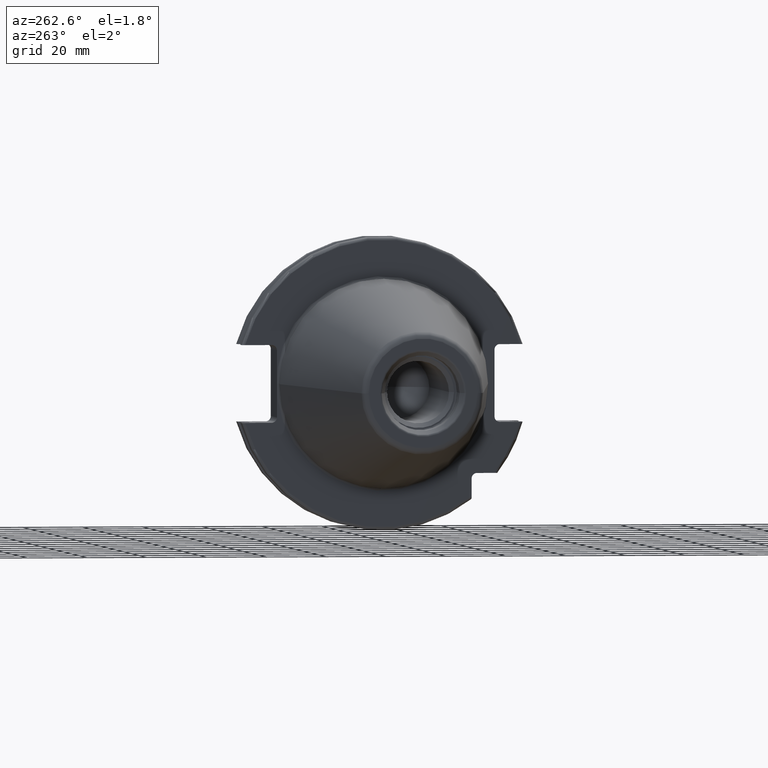
[diagram: clean part render]
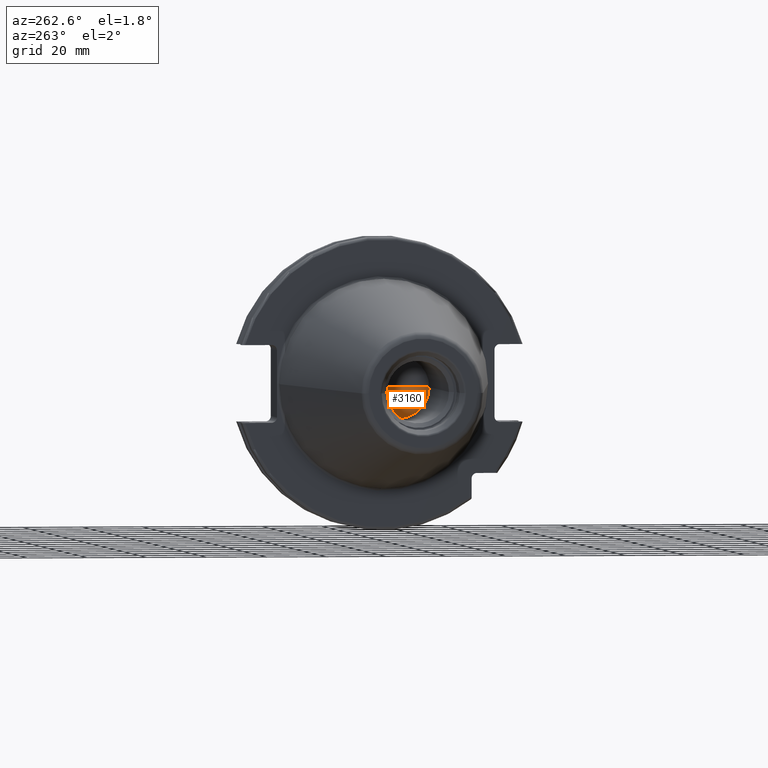
[diagram: same view with one face highlighted and labeled with its STEP entity id]
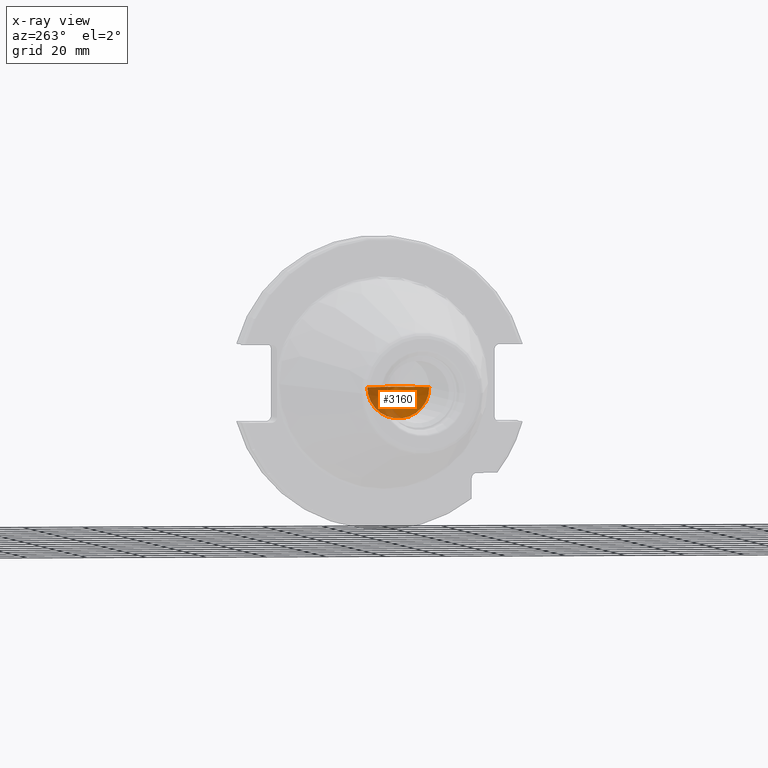
[diagram: x-ray of the same camera — body ghosted, the highlighted face saturated]
A machine part, auxiliary view. The second image highlights one B-rep face of the part: STEP entity #3160.
The next image is the same camera in x-ray: the body ghosted, the highlighted face saturated — about 34% of this face is hidden behind the body in this view.
In plain terms, the highlighted conical surface has half-angle 59 deg.
Its self-contained STEP definition (entity closure, byte-faithful):
#1314=CARTESIAN_POINT('',(-3.76E1,0.E0,0.E0));
#1315=DIRECTION('',(-1.E0,0.E0,0.E0));
#1316=DIRECTION('',(0.E0,1.E0,0.E0));
#1317=AXIS2_PLACEMENT_3D('',#1314,#1315,#1316);
#1328=DIRECTION('',(-5.150380749101E-1,8.571673007021E-1,0.E0));
#1329=VECTOR('',#1328,1.210382149611E1);
#1330=CARTESIAN_POINT('',(-3.136607107759E1,0.E0,0.E0));
#1331=LINE('',#1330,#1329);
#1332=DIRECTION('',(-5.150380749101E-1,-8.571673007021E-1,0.E0));
#1333=VECTOR('',#1332,1.210382149611E1);
#1334=CARTESIAN_POINT('',(-3.136607107759E1,0.E0,0.E0));
#1335=LINE('',#1334,#1333);
#1354=CARTESIAN_POINT('',(-3.136607107759E1,0.E0,0.E0));
#1355=CARTESIAN_POINT('',(-3.76E1,1.0375E1,0.E0));
#1356=VERTEX_POINT('',#1354);
#1357=VERTEX_POINT('',#1355);
#1378=CARTESIAN_POINT('',(-3.76E1,-1.0375E1,0.E0));
#1379=VERTEX_POINT('',#1378);
#3150=CARTESIAN_POINT('',(-3.448303553879E1,0.E0,0.E0));
#3151=DIRECTION('',(-1.E0,0.E0,0.E0));
#3152=DIRECTION('',(0.E0,1.E0,0.E0));
#3153=AXIS2_PLACEMENT_3D('',#3150,#3151,#3152);
#3154=CONICAL_SURFACE('',#3153,5.1875E0,5.9E1);
#3155=ORIENTED_EDGE('',*,*,#3142,.F.);
#3156=ORIENTED_EDGE('',*,*,#3145,.T.);
#3157=ORIENTED_EDGE('',*,*,#3116,.F.);
#3158=EDGE_LOOP('',(#3155,#3156,#3157));
#3159=FACE_OUTER_BOUND('',#3158,.F.);
#3160=ADVANCED_FACE('',(#3159),#3154,.F.);
#1318=CIRCLE('',#1317,1.0375E1);
#3116=EDGE_CURVE('',#1357,#1379,#1318,.T.);
#3142=EDGE_CURVE('',#1356,#1357,#1331,.T.);
#3145=EDGE_CURVE('',#1356,#1379,#1335,.T.);